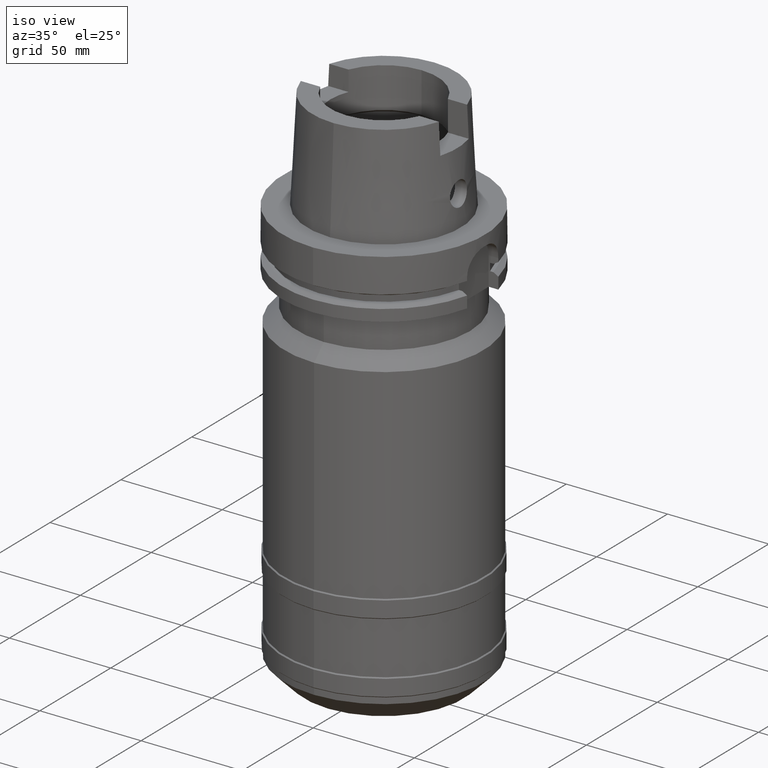
[diagram: clean part render]
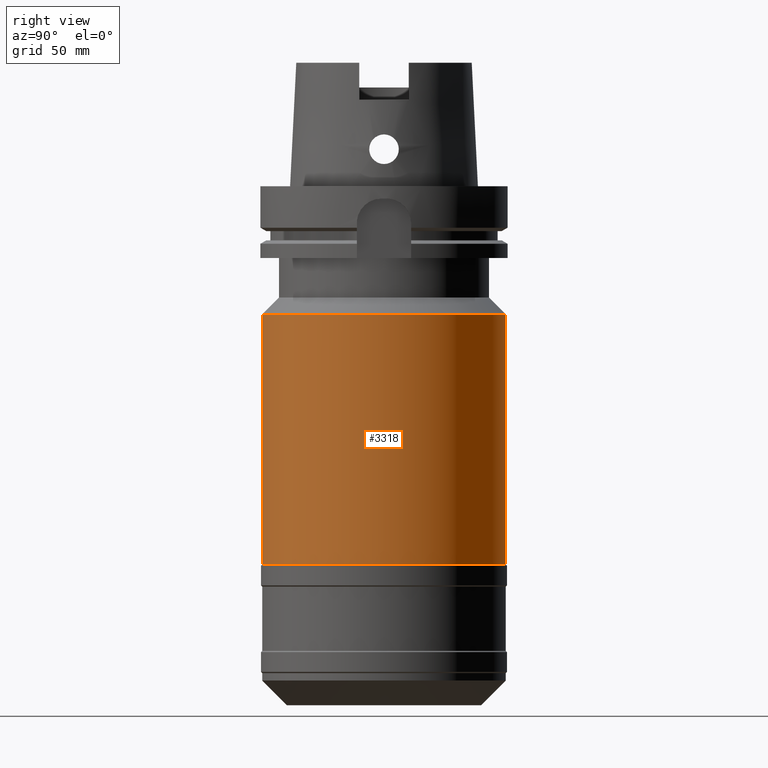
[diagram: tour spotlight — one face highlighted and labeled with its STEP entity id]
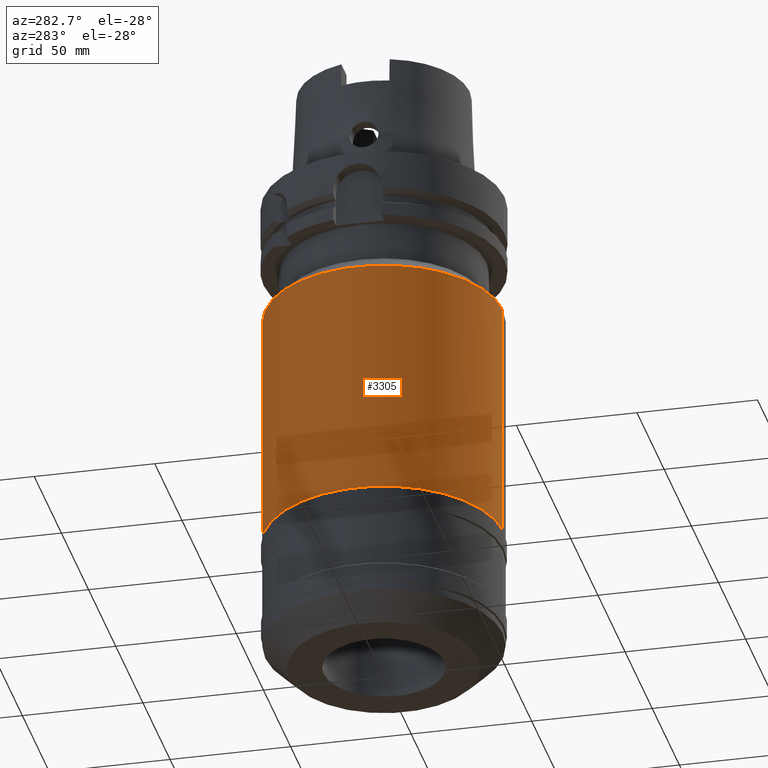
[diagram: tour spotlight — one face highlighted and labeled with its STEP entity id]
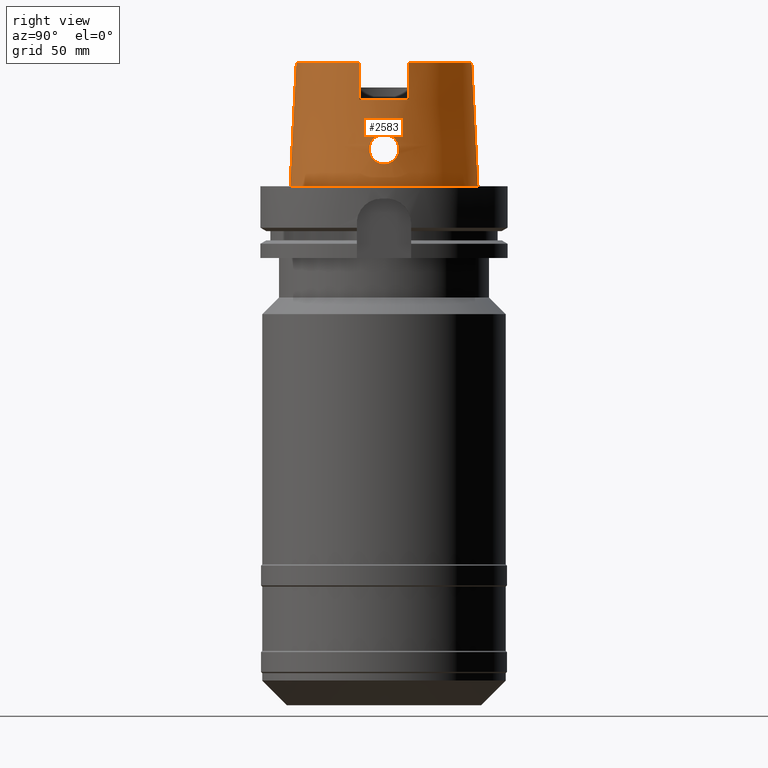
[diagram: tour spotlight — one face highlighted and labeled with its STEP entity id]
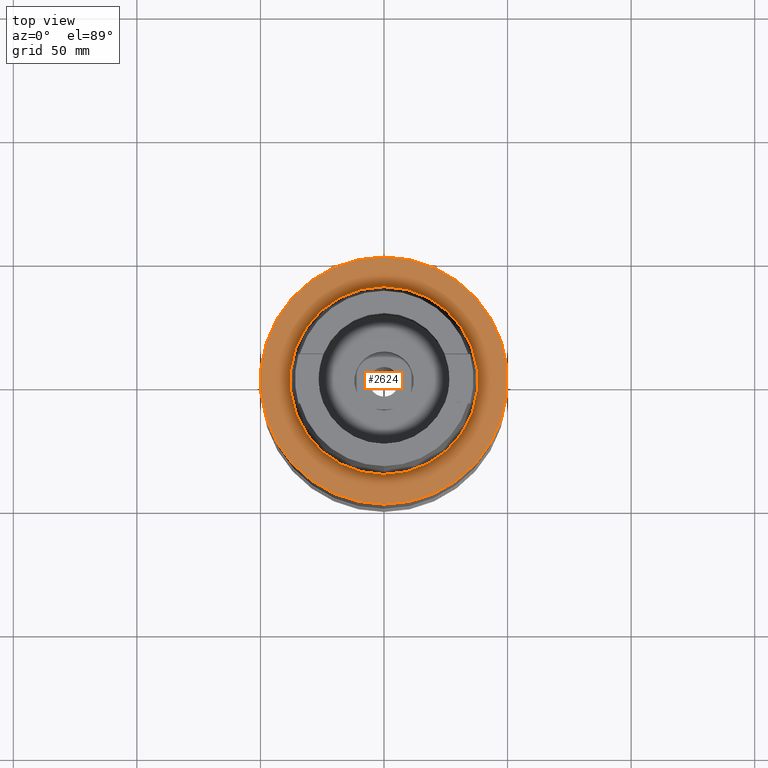
[diagram: tour spotlight — one face highlighted and labeled with its STEP entity id]
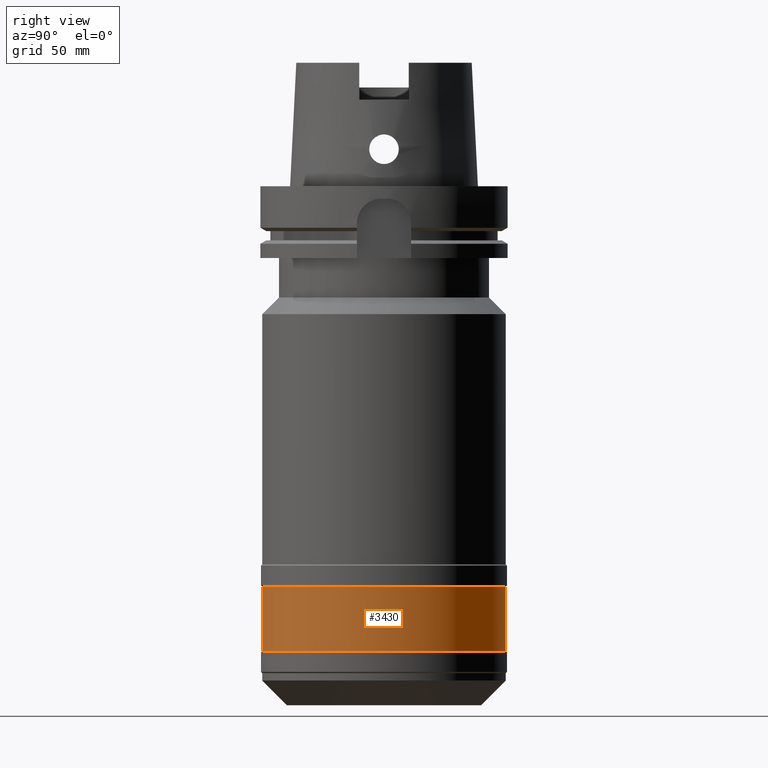
[diagram: tour spotlight — one face highlighted and labeled with its STEP entity id]
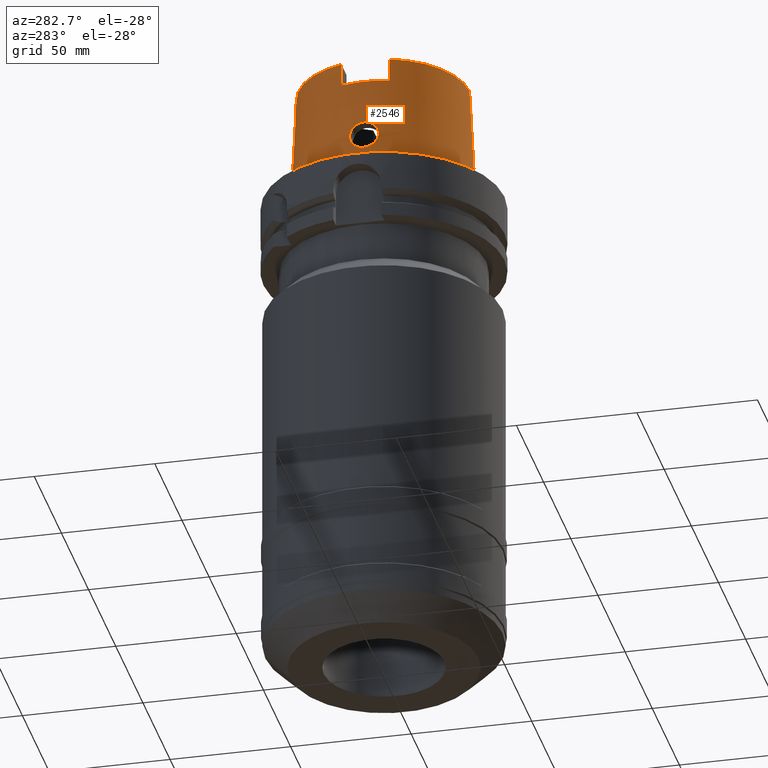
[diagram: tour spotlight — one face highlighted and labeled with its STEP entity id]
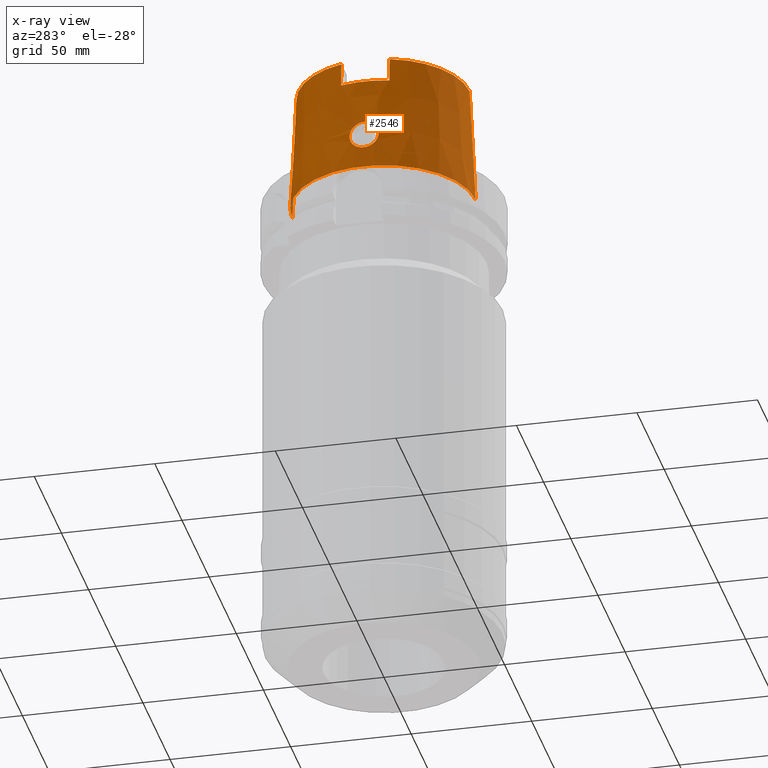
[diagram: x-ray of the same camera — body ghosted, this tour face saturated]
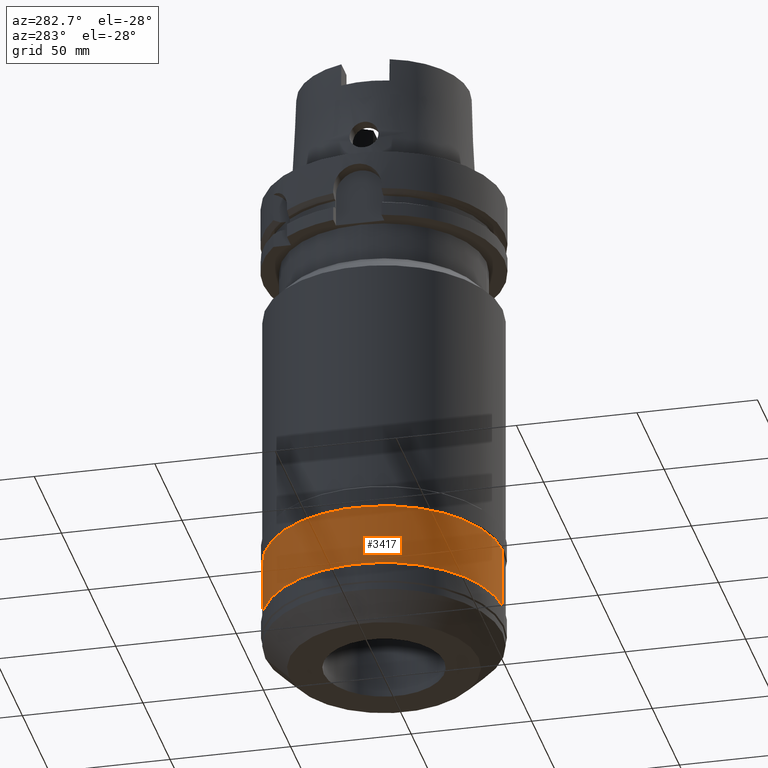
[diagram: tour spotlight — one face highlighted and labeled with its STEP entity id]
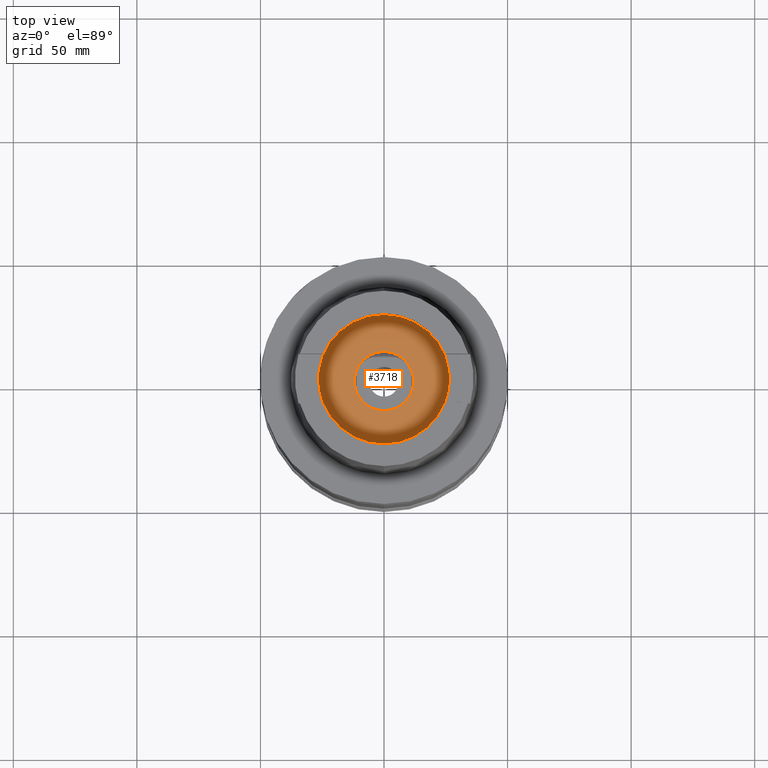
[diagram: tour spotlight — one face highlighted and labeled with its STEP entity id]
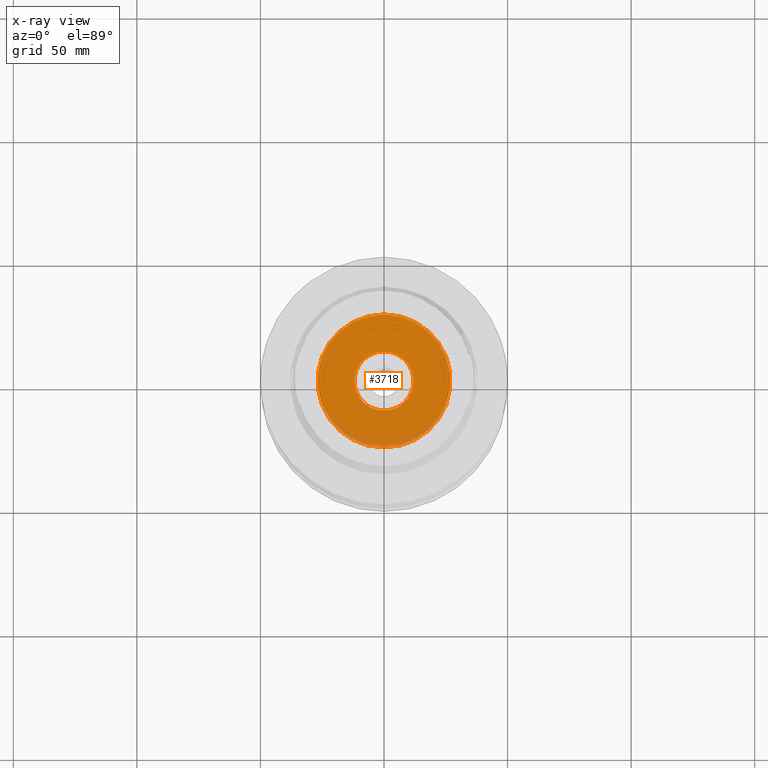
[diagram: x-ray of the same camera — body ghosted, this tour face saturated]
A machine part: a face-by-face anatomy tour. The part has 95 B-rep faces; the first image is the clean iso view, then the 8 largest visible faces are spotlighted one at a time (largest first), each with its STEP entity span.

Face 1 — right view, entity #3318. In plain terms, the highlighted cylindrical surface (partial cylindrical patch) has radius 49.25 mm, axis along (0, 0, 1).
Definition (entity closure, byte-faithful):
#1297=CARTESIAN_POINT('',(0.E0,0.E0,-5.175E1));
#1298=DIRECTION('',(0.E0,0.E0,-1.E0));
#1299=DIRECTION('',(0.E0,1.E0,0.E0));
#1300=AXIS2_PLACEMENT_3D('',#1297,#1298,#1299);
#1336=DIRECTION('',(0.E0,0.E0,-1.E0));
#1337=VECTOR('',#1336,1.0125E2);
#1338=CARTESIAN_POINT('',(0.E0,-4.925E1,-5.175E1));
#1339=LINE('',#1338,#1337);
#1343=DIRECTION('',(0.E0,0.E0,-1.E0));
#1344=VECTOR('',#1343,1.0125E2);
#1345=CARTESIAN_POINT('',(0.E0,4.925E1,-5.175E1));
#1346=LINE('',#1345,#1344);
#1365=CARTESIAN_POINT('',(0.E0,0.E0,-1.53E2));
#1366=DIRECTION('',(0.E0,0.E0,1.E0));
#1367=DIRECTION('',(0.E0,-1.E0,0.E0));
#1368=AXIS2_PLACEMENT_3D('',#1365,#1366,#1367);
#2214=CARTESIAN_POINT('',(0.E0,4.925E1,-5.175E1));
#2215=VERTEX_POINT('',#2214);
#2216=CARTESIAN_POINT('',(0.E0,-4.925E1,-5.175E1));
#2217=VERTEX_POINT('',#2216);
#2218=CARTESIAN_POINT('',(0.E0,4.925E1,-1.53E2));
#2219=VERTEX_POINT('',#2218);
#2220=CARTESIAN_POINT('',(0.E0,-4.925E1,-1.53E2));
#2221=VERTEX_POINT('',#2220);
#3306=CARTESIAN_POINT('',(0.E0,0.E0,-2.23E2));
#3307=DIRECTION('',(0.E0,0.E0,1.E0));
#3308=DIRECTION('',(0.E0,1.E0,0.E0));
#3309=AXIS2_PLACEMENT_3D('',#3306,#3307,#3308);
#3310=CYLINDRICAL_SURFACE('',#3309,4.925E1);
#3311=ORIENTED_EDGE('',*,*,#3296,.T.);
#3313=ORIENTED_EDGE('',*,*,#3312,.F.);
#3314=ORIENTED_EDGE('',*,*,#3299,.F.);
#3315=ORIENTED_EDGE('',*,*,#3270,.F.);
#3316=EDGE_LOOP('',(#3311,#3313,#3314,#3315));
#3317=FACE_OUTER_BOUND('',#3316,.F.);
#1301=CIRCLE('',#1300,4.925E1);
#1369=CIRCLE('',#1368,4.925E1);
#3270=EDGE_CURVE('',#2215,#2217,#1301,.T.);
#3296=EDGE_CURVE('',#2215,#2219,#1346,.T.);
#3299=EDGE_CURVE('',#2217,#2221,#1339,.T.);
#3312=EDGE_CURVE('',#2221,#2219,#1369,.T.);
#3318=ADVANCED_FACE('',(#3317),#3310,.T.);

Face 2 — auxiliary view, entity #3305. In plain terms, the highlighted cylindrical surface (partial cylindrical patch) has radius 49.25 mm, axis along (0, 0, 1).
Definition (entity closure, byte-faithful):
#1328=CARTESIAN_POINT('',(0.E0,0.E0,-5.175E1));
#1329=DIRECTION('',(0.E0,0.E0,-1.E0));
#1330=DIRECTION('',(0.E0,-1.E0,0.E0));
#1331=AXIS2_PLACEMENT_3D('',#1328,#1329,#1330);
#1336=DIRECTION('',(0.E0,0.E0,-1.E0));
#1337=VECTOR('',#1336,1.0125E2);
#1338=CARTESIAN_POINT('',(0.E0,-4.925E1,-5.175E1));
#1339=LINE('',#1338,#1337);
#1343=DIRECTION('',(0.E0,0.E0,-1.E0));
#1344=VECTOR('',#1343,1.0125E2);
#1345=CARTESIAN_POINT('',(0.E0,4.925E1,-5.175E1));
#1346=LINE('',#1345,#1344);
#1373=CARTESIAN_POINT('',(0.E0,0.E0,-1.53E2));
#1374=DIRECTION('',(0.E0,0.E0,1.E0));
#1375=DIRECTION('',(0.E0,1.E0,0.E0));
#1376=AXIS2_PLACEMENT_3D('',#1373,#1374,#1375);
#2214=CARTESIAN_POINT('',(0.E0,4.925E1,-5.175E1));
#2215=VERTEX_POINT('',#2214);
#2216=CARTESIAN_POINT('',(0.E0,-4.925E1,-5.175E1));
#2217=VERTEX_POINT('',#2216);
#2218=CARTESIAN_POINT('',(0.E0,4.925E1,-1.53E2));
#2219=VERTEX_POINT('',#2218);
#2220=CARTESIAN_POINT('',(0.E0,-4.925E1,-1.53E2));
#2221=VERTEX_POINT('',#2220);
#3291=CARTESIAN_POINT('',(0.E0,0.E0,-2.23E2));
#3292=DIRECTION('',(0.E0,0.E0,1.E0));
#3293=DIRECTION('',(0.E0,1.E0,0.E0));
#3294=AXIS2_PLACEMENT_3D('',#3291,#3292,#3293);
#3295=CYLINDRICAL_SURFACE('',#3294,4.925E1);
#3297=ORIENTED_EDGE('',*,*,#3296,.F.);
#3298=ORIENTED_EDGE('',*,*,#3286,.F.);
#3300=ORIENTED_EDGE('',*,*,#3299,.T.);
#3302=ORIENTED_EDGE('',*,*,#3301,.F.);
#3303=EDGE_LOOP('',(#3297,#3298,#3300,#3302));
#3304=FACE_OUTER_BOUND('',#3303,.F.);
#1332=CIRCLE('',#1331,4.925E1);
#1377=CIRCLE('',#1376,4.925E1);
#3286=EDGE_CURVE('',#2217,#2215,#1332,.T.);
#3296=EDGE_CURVE('',#2215,#2219,#1346,.T.);
#3299=EDGE_CURVE('',#2217,#2221,#1339,.T.);
#3301=EDGE_CURVE('',#2219,#2221,#1377,.T.);
#3305=ADVANCED_FACE('',(#3304),#3295,.T.);

Face 3 — right view, entity #2583. In plain terms, the highlighted conical surface has half-angle 2.862 deg.
Definition (entity closure, byte-faithful):
#33=CARTESIAN_POINT('',(0.E0,0.E0,5.E1));
#34=DIRECTION('',(0.E0,0.E0,-1.E0));
#35=DIRECTION('',(0.E0,1.E0,0.E0));
#36=AXIS2_PLACEMENT_3D('',#33,#34,#35);
#136=CARTESIAN_POINT('',(0.E0,0.E0,5.E1));
#137=DIRECTION('',(0.E0,0.E0,-1.E0));
#138=DIRECTION('',(9.594225291368E-1,-2.819723578379E-1,0.E0));
#139=AXIS2_PLACEMENT_3D('',#136,#137,#138);
#179=DIRECTION('',(0.E0,-4.993926899643E-2,-9.987522562738E-1));
#180=VECTOR('',#179,5.006246512678E1);
#181=CARTESIAN_POINT('',(0.E0,-3.549993366993E1,5.E1));
#182=LINE('',#181,#180);
#247=CARTESIAN_POINT('',(3.405943614579E1,-1.001E1,5.E1));
#248=CARTESIAN_POINT('',(3.414630939533E1,-1.001E1,4.833309222734E1));
#249=CARTESIAN_POINT('',(3.431997854160E1,-1.001E1,4.499943651641E1));
#250=CARTESIAN_POINT('',(3.458032701805E1,-1.001E1,3.999943644923E1));
#251=CARTESIAN_POINT('',(3.475379007651E1,-1.001E1,3.666642546522E1));
#252=CARTESIAN_POINT('',(3.484048499117E1,-1.001E1,3.5E1));
#257=CARTESIAN_POINT('',(3.484048499117E1,1.001E1,3.5E1));
#258=CARTESIAN_POINT('',(3.475379007651E1,1.001E1,3.666642546522E1));
#259=CARTESIAN_POINT('',(3.458032701805E1,1.001E1,3.999943644923E1));
#260=CARTESIAN_POINT('',(3.431997854160E1,1.001E1,4.499943651641E1));
#261=CARTESIAN_POINT('',(3.414630939533E1,1.001E1,4.833309222734E1));
#262=CARTESIAN_POINT('',(3.405943614579E1,1.001E1,5.E1));
#267=DIRECTION('',(0.E0,4.993926899643E-2,-9.987522562738E-1));
#268=VECTOR('',#267,5.006246512678E1);
#269=CARTESIAN_POINT('',(0.E0,3.549993366993E1,5.E1));
#270=LINE('',#269,#268);
#274=CARTESIAN_POINT('',(3.694998175923E1,-1.394597051989E-13,2.1E1));
#275=CARTESIAN_POINT('',(3.694998175923E1,-5.230126004361E-1,2.1E1));
#276=CARTESIAN_POINT('',(3.693413998904E1,-1.570201911805E0,2.086238810154E1));
#277=CARTESIAN_POINT('',(3.687094047379E1,-3.037110792427E0,2.025501137923E1));
#278=CARTESIAN_POINT('',(3.679109130844E1,-4.299142818811E0,1.928420430060E1));
#279=CARTESIAN_POINT('',(3.672645747045E1,-5.261736304353E0,1.802437967284E1));
#280=CARTESIAN_POINT('',(3.670710366248E1,-5.864133351276E0,1.656046419197E1));
#281=CARTESIAN_POINT('',(3.675214570651E1,-6.067589951777E0,1.500436049954E1));
#282=CARTESIAN_POINT('',(3.686482139944E1,-5.865500760321E0,1.344301875019E1));
#283=CARTESIAN_POINT('',(3.703191350849E1,-5.262600870461E0,1.197676796452E1));
#284=CARTESIAN_POINT('',(3.722288329311E1,-4.297377496872E0,1.071304670396E1));
#285=CARTESIAN_POINT('',(3.739934591497E1,-3.027363828694E0,9.738853617410E0));
#286=CARTESIAN_POINT('',(3.752127463478E1,-1.559611364021E0,9.135274888512E0));
#287=CARTESIAN_POINT('',(3.755000165825E1,-5.184961183237E-1,9.E0));
#288=CARTESIAN_POINT('',(3.755000165825E1,0.E0,9.E0));
#293=CARTESIAN_POINT('',(3.755000165825E1,0.E0,9.E0));
#294=CARTESIAN_POINT('',(3.755000165825E1,5.180755808704E-1,9.E0));
#295=CARTESIAN_POINT('',(3.752123976991E1,1.555457138629E0,9.135504589557E0));
#296=CARTESIAN_POINT('',(3.740151953141E1,3.004805221264E0,9.728024511899E0));
#297=CARTESIAN_POINT('',(3.722750411562E1,4.269442508443E0,1.068600386384E1));
#298=CARTESIAN_POINT('',(3.703612455343E1,5.245140589349E0,1.194462932491E1));
#299=CARTESIAN_POINT('',(3.686635136495E1,5.862211683343E0,1.342388085629E1));
#300=CARTESIAN_POINT('',(3.675195938897E1,6.068924227686E0,1.500356697737E1));
#301=CARTESIAN_POINT('',(3.670699644778E1,5.862090617243E0,1.656938676171E1));
#302=CARTESIAN_POINT('',(3.672673353473E1,5.257850400820E0,1.802962385481E1));
#303=CARTESIAN_POINT('',(3.679090914946E1,4.301585837748E0,1.928062095478E1));
#304=CARTESIAN_POINT('',(3.687053943676E1,3.044356714936E0,2.025092074959E1));
#305=CARTESIAN_POINT('',(3.693405051753E1,1.574510382309E0,2.086164770044E1));
#306=CARTESIAN_POINT('',(3.694998175923E1,5.247305156505E-1,2.1E1));
#307=CARTESIAN_POINT('',(3.694998175923E1,-1.394597051989E-13,2.1E1));
#327=CARTESIAN_POINT('',(0.E0,0.E0,3.5E1));
#328=DIRECTION('',(0.E0,0.E0,-1.E0));
#329=DIRECTION('',(9.611179264983E-1,2.761382468323E-1,0.E0));
#330=AXIS2_PLACEMENT_3D('',#327,#328,#329);
#358=CARTESIAN_POINT('',(0.E0,0.E0,-1.136868377216E-13));
#359=DIRECTION('',(0.E0,0.E0,1.E0));
#360=DIRECTION('',(0.E0,-1.E0,0.E0));
#361=AXIS2_PLACEMENT_3D('',#358,#359,#360);
#2098=CARTESIAN_POINT('',(0.E0,3.549993366992E1,5.E1));
#2099=VERTEX_POINT('',#2098);
#2100=CARTESIAN_POINT('',(3.405943614579E1,1.001E1,5.E1));
#2101=VERTEX_POINT('',#2100);
#2114=CARTESIAN_POINT('',(3.405943614579E1,-1.001E1,5.E1));
#2115=VERTEX_POINT('',#2114);
#2116=CARTESIAN_POINT('',(0.E0,-3.549993366992E1,5.E1));
#2117=VERTEX_POINT('',#2116);
#2132=CARTESIAN_POINT('',(3.484048499117E1,-1.001E1,3.5E1));
#2133=VERTEX_POINT('',#2132);
#2134=CARTESIAN_POINT('',(3.484048499117E1,1.001E1,3.5E1));
#2135=VERTEX_POINT('',#2134);
#2136=CARTESIAN_POINT('',(0.E0,3.800001658252E1,-2.273736754432E-13));
#2137=VERTEX_POINT('',#2136);
#2138=CARTESIAN_POINT('',(0.E0,-3.800001658252E1,-1.136868377216E-13));
#2139=VERTEX_POINT('',#2138);
#2140=VERTEX_POINT('',#274);
#2141=VERTEX_POINT('',#288);
#2559=CARTESIAN_POINT('',(0.E0,0.E0,2.5E1));
#2560=DIRECTION('',(0.E0,0.E0,-1.E0));
#2561=DIRECTION('',(0.E0,-1.E0,0.E0));
#2562=AXIS2_PLACEMENT_3D('',#2559,#2560,#2561);
#2563=CONICAL_SURFACE('',#2562,3.674997512622E1,2.8625E0);
#2564=ORIENTED_EDGE('',*,*,#2485,.T.);
#2566=ORIENTED_EDGE('',*,*,#2565,.F.);
#2568=ORIENTED_EDGE('',*,*,#2567,.T.);
#2569=ORIENTED_EDGE('',*,*,#2406,.F.);
#2570=ORIENTED_EDGE('',*,*,#2535,.T.);
#2572=ORIENTED_EDGE('',*,*,#2571,.F.);
#2573=ORIENTED_EDGE('',*,*,#2531,.F.);
#2574=ORIENTED_EDGE('',*,*,#2500,.F.);
#2575=EDGE_LOOP('',(#2564,#2566,#2568,#2569,#2570,#2572,#2573,#2574));
#2576=FACE_OUTER_BOUND('',#2575,.F.);
#2578=ORIENTED_EDGE('',*,*,#2577,.T.);
#2580=ORIENTED_EDGE('',*,*,#2579,.T.);
#2581=EDGE_LOOP('',(#2578,#2580));
#2582=FACE_BOUND('',#2581,.F.);
#37=CIRCLE('',#36,3.549993366992E1);
#140=CIRCLE('',#139,3.549993366992E1);
#253=B_SPLINE_CURVE_WITH_KNOTS('',3,(#247,#248,#249,#250,#251,#252),
.UNSPECIFIED.,.F.,.F.,(4,1,1,4),(0.E0,3.333333333333E-1,6.666666666667E-1,1.E0),
.UNSPECIFIED.);
#263=B_SPLINE_CURVE_WITH_KNOTS('',3,(#257,#258,#259,#260,#261,#262),
.UNSPECIFIED.,.F.,.F.,(4,1,1,4),(0.E0,3.333333333333E-1,6.666666666667E-1,1.E0),
.UNSPECIFIED.);
#289=B_SPLINE_CURVE_WITH_KNOTS('',3,(#274,#275,#276,#277,#278,#279,#280,#281,
#282,#283,#284,#285,#286,#287,#288),.UNSPECIFIED.,.F.,.F.,(4,1,1,1,1,1,1,1,1,1,
1,1,4),(0.E0,8.333333333333E-2,1.666666666667E-1,2.5E-1,3.333333333333E-1,
4.166666666667E-1,5.E-1,5.833333333333E-1,6.666666666667E-1,7.5E-1,
8.333333333333E-1,9.166666666667E-1,1.E0),.UNSPECIFIED.);
#308=B_SPLINE_CURVE_WITH_KNOTS('',3,(#293,#294,#295,#296,#297,#298,#299,#300,
#301,#302,#303,#304,#305,#306,#307),.UNSPECIFIED.,.F.,.F.,(4,1,1,1,1,1,1,1,1,1,
1,1,4),(0.E0,8.333333333333E-2,1.666666666667E-1,2.5E-1,3.333333333333E-1,
4.166666666667E-1,5.E-1,5.833333333333E-1,6.666666666667E-1,7.5E-1,
8.333333333333E-1,9.166666666667E-1,1.E0),.UNSPECIFIED.);
#331=CIRCLE('',#330,3.624995854370E1);
#362=CIRCLE('',#361,3.800001658252E1);
#2406=EDGE_CURVE('',#2099,#2101,#37,.T.);
#2485=EDGE_CURVE('',#2115,#2133,#253,.T.);
#2500=EDGE_CURVE('',#2115,#2117,#140,.T.);
#2531=EDGE_CURVE('',#2117,#2139,#182,.T.);
#2535=EDGE_CURVE('',#2099,#2137,#270,.T.);
#2565=EDGE_CURVE('',#2135,#2133,#331,.T.);
#2567=EDGE_CURVE('',#2135,#2101,#263,.T.);
#2571=EDGE_CURVE('',#2139,#2137,#362,.T.);
#2577=EDGE_CURVE('',#2140,#2141,#289,.T.);
#2579=EDGE_CURVE('',#2141,#2140,#308,.T.);
#2583=ADVANCED_FACE('',(#2576,#2582),#2563,.T.);

Face 4 — top view, entity #2624. In plain terms, the highlighted planar face has unit normal (0, 0, 1).
Definition (entity closure, byte-faithful):
#342=CARTESIAN_POINT('',(0.E0,0.E0,0.E0));
#343=DIRECTION('',(0.E0,0.E0,-1.E0));
#344=DIRECTION('',(0.E0,-1.E0,0.E0));
#345=AXIS2_PLACEMENT_3D('',#342,#343,#344);
#350=CARTESIAN_POINT('',(0.E0,0.E0,0.E0));
#351=DIRECTION('',(0.E0,0.E0,-1.E0));
#352=DIRECTION('',(0.E0,1.E0,0.E0));
#353=AXIS2_PLACEMENT_3D('',#350,#351,#352);
#358=CARTESIAN_POINT('',(0.E0,0.E0,-1.136868377216E-13));
#359=DIRECTION('',(0.E0,0.E0,1.E0));
#360=DIRECTION('',(0.E0,-1.E0,0.E0));
#361=AXIS2_PLACEMENT_3D('',#358,#359,#360);
#366=CARTESIAN_POINT('',(0.E0,0.E0,-1.136868377216E-13));
#367=DIRECTION('',(0.E0,0.E0,1.E0));
#368=DIRECTION('',(0.E0,1.E0,0.E0));
#369=AXIS2_PLACEMENT_3D('',#366,#367,#368);
#2136=CARTESIAN_POINT('',(0.E0,3.800001658252E1,-2.273736754432E-13));
#2137=VERTEX_POINT('',#2136);
#2138=CARTESIAN_POINT('',(0.E0,-3.800001658252E1,-1.136868377216E-13));
#2139=VERTEX_POINT('',#2138);
#2146=CARTESIAN_POINT('',(0.E0,-5.E1,0.E0));
#2147=CARTESIAN_POINT('',(0.E0,5.E1,0.E0));
#2148=VERTEX_POINT('',#2146);
#2149=VERTEX_POINT('',#2147);
#2609=CARTESIAN_POINT('',(0.E0,0.E0,0.E0));
#2610=DIRECTION('',(0.E0,0.E0,1.E0));
#2611=DIRECTION('',(0.E0,1.E0,0.E0));
#2612=AXIS2_PLACEMENT_3D('',#2609,#2610,#2611);
#2613=PLANE('',#2612);
#2615=ORIENTED_EDGE('',*,*,#2614,.T.);
#2617=ORIENTED_EDGE('',*,*,#2616,.T.);
#2618=EDGE_LOOP('',(#2615,#2617));
#2619=FACE_OUTER_BOUND('',#2618,.F.);
#2620=ORIENTED_EDGE('',*,*,#2571,.T.);
#2621=ORIENTED_EDGE('',*,*,#2533,.T.);
#2622=EDGE_LOOP('',(#2620,#2621));
#2623=FACE_BOUND('',#2622,.F.);
#346=CIRCLE('',#345,5.E1);
#354=CIRCLE('',#353,5.E1);
#362=CIRCLE('',#361,3.800001658252E1);
#370=CIRCLE('',#369,3.800001658252E1);
#2533=EDGE_CURVE('',#2137,#2139,#370,.T.);
#2571=EDGE_CURVE('',#2139,#2137,#362,.T.);
#2614=EDGE_CURVE('',#2148,#2149,#346,.T.);
#2616=EDGE_CURVE('',#2149,#2148,#354,.T.);
#2624=ADVANCED_FACE('',(#2619,#2623),#2613,.T.);

Face 5 — right view, entity #3430. In plain terms, the highlighted cylindrical surface (partial cylindrical patch) has radius 49.25 mm, axis along (0, 0, 1).
Definition (entity closure, byte-faithful):
#1417=CARTESIAN_POINT('',(0.E0,0.E0,-1.62E2));
#1418=DIRECTION('',(0.E0,0.E0,-1.E0));
#1419=DIRECTION('',(0.E0,1.E0,0.E0));
#1420=AXIS2_PLACEMENT_3D('',#1417,#1418,#1419);
#1456=DIRECTION('',(0.E0,0.E0,-1.E0));
#1457=VECTOR('',#1456,2.6E1);
#1458=CARTESIAN_POINT('',(0.E0,-4.925E1,-1.62E2));
#1459=LINE('',#1458,#1457);
#1463=DIRECTION('',(0.E0,0.E0,-1.E0));
#1464=VECTOR('',#1463,2.6E1);
#1465=CARTESIAN_POINT('',(0.E0,4.925E1,-1.62E2));
#1466=LINE('',#1465,#1464);
#1485=CARTESIAN_POINT('',(0.E0,0.E0,-1.88E2));
#1486=DIRECTION('',(0.E0,0.E0,1.E0));
#1487=DIRECTION('',(0.E0,-1.E0,0.E0));
#1488=AXIS2_PLACEMENT_3D('',#1485,#1486,#1487);
#2230=CARTESIAN_POINT('',(0.E0,4.925E1,-1.62E2));
#2231=VERTEX_POINT('',#2230);
#2232=CARTESIAN_POINT('',(0.E0,-4.925E1,-1.62E2));
#2233=VERTEX_POINT('',#2232);
#2234=CARTESIAN_POINT('',(0.E0,4.925E1,-1.88E2));
#2235=VERTEX_POINT('',#2234);
#2236=CARTESIAN_POINT('',(0.E0,-4.925E1,-1.88E2));
#2237=VERTEX_POINT('',#2236);
#3418=CARTESIAN_POINT('',(0.E0,0.E0,-2.23E2));
#3419=DIRECTION('',(0.E0,0.E0,1.E0));
#3420=DIRECTION('',(0.E0,1.E0,0.E0));
#3421=AXIS2_PLACEMENT_3D('',#3418,#3419,#3420);
#3422=CYLINDRICAL_SURFACE('',#3421,4.925E1);
#3423=ORIENTED_EDGE('',*,*,#3408,.T.);
#3425=ORIENTED_EDGE('',*,*,#3424,.F.);
#3426=ORIENTED_EDGE('',*,*,#3411,.F.);
#3427=ORIENTED_EDGE('',*,*,#3382,.F.);
#3428=EDGE_LOOP('',(#3423,#3425,#3426,#3427));
#3429=FACE_OUTER_BOUND('',#3428,.F.);
#1421=CIRCLE('',#1420,4.925E1);
#1489=CIRCLE('',#1488,4.925E1);
#3382=EDGE_CURVE('',#2231,#2233,#1421,.T.);
#3408=EDGE_CURVE('',#2231,#2235,#1466,.T.);
#3411=EDGE_CURVE('',#2233,#2237,#1459,.T.);
#3424=EDGE_CURVE('',#2237,#2235,#1489,.T.);
#3430=ADVANCED_FACE('',(#3429),#3422,.T.);

Face 6 — auxiliary view, entity #2546. An x-ray twin of the same camera follows (body ghosted, this face saturated) — the face is partly hidden behind the body. In plain terms, the highlighted conical surface has half-angle 2.862 deg.
Definition (entity closure, byte-faithful):
#25=CARTESIAN_POINT('',(0.E0,0.E0,5.E1));
#26=DIRECTION('',(0.E0,0.E0,-1.E0));
#27=DIRECTION('',(-9.594225291368E-1,2.819723578379E-1,0.E0));
#28=AXIS2_PLACEMENT_3D('',#25,#26,#27);
#144=CARTESIAN_POINT('',(0.E0,0.E0,5.E1));
#145=DIRECTION('',(0.E0,0.E0,-1.E0));
#146=DIRECTION('',(0.E0,-1.E0,0.E0));
#147=AXIS2_PLACEMENT_3D('',#144,#145,#146);
#159=CARTESIAN_POINT('',(-3.405943614579E1,1.001E1,5.E1));
#160=CARTESIAN_POINT('',(-3.411734891553E1,1.001E1,4.888878053341E1));
#161=CARTESIAN_POINT('',(-3.423313994952E1,1.001E1,4.666641344050E1));
#162=CARTESIAN_POINT('',(-3.440675689289E1,1.001E1,4.333308008699E1));
#163=CARTESIAN_POINT('',(-3.452245538564E1,1.001E1,4.111100272689E1));
#164=CARTESIAN_POINT('',(-3.458028800023E1,1.001E1,4.E1));
#169=CARTESIAN_POINT('',(-3.458028800023E1,-1.001E1,4.E1));
#170=CARTESIAN_POINT('',(-3.452245538564E1,-1.001E1,4.111100272688E1));
#171=CARTESIAN_POINT('',(-3.440675689289E1,-1.001E1,4.333308008698E1));
#172=CARTESIAN_POINT('',(-3.423313994952E1,-1.001E1,4.666641344049E1));
#173=CARTESIAN_POINT('',(-3.411734891553E1,-1.001E1,4.888878053340E1));
#174=CARTESIAN_POINT('',(-3.405943614579E1,-1.001E1,5.E1));
#179=DIRECTION('',(0.E0,-4.993926899643E-2,-9.987522562738E-1));
#180=VECTOR('',#179,5.006246512678E1);
#181=CARTESIAN_POINT('',(0.E0,-3.549993366993E1,5.E1));
#182=LINE('',#181,#180);
#186=CARTESIAN_POINT('',(-3.755000165825E1,1.432651546991E-13,9.E0));
#187=CARTESIAN_POINT('',(-3.755000165825E1,-5.180820580257E-1,9.E0));
#188=CARTESIAN_POINT('',(-3.752123900372E1,-1.555471630263E0,9.135508208904E0));
#189=CARTESIAN_POINT('',(-3.740151852966E1,-3.004812628725E0,9.728029831910E0));
#190=CARTESIAN_POINT('',(-3.722750441794E1,-4.269439729627E0,1.068600255926E1));
#191=CARTESIAN_POINT('',(-3.703612608896E1,-5.245133597047E0,1.194461863005E1));
#192=CARTESIAN_POINT('',(-3.686635251457E1,-5.862208889609E0,1.342386732222E1));
#193=CARTESIAN_POINT('',(-3.675195940150E1,-6.068924555309E0,1.500356552634E1));
#194=CARTESIAN_POINT('',(-3.670699645884E1,-5.862092105491E0,1.656938215048E1));
#195=CARTESIAN_POINT('',(-3.672673361109E1,-5.257848040084E0,1.802962911021E1));
#196=CARTESIAN_POINT('',(-3.679090955253E1,-4.301580727658E0,1.928062722612E1));
#197=CARTESIAN_POINT('',(-3.687054035588E1,-3.044339581713E0,2.025093050896E1));
#198=CARTESIAN_POINT('',(-3.693405053436E1,-1.574506161780E0,2.086164752451E1));
#199=CARTESIAN_POINT('',(-3.694998175923E1,-5.247291006619E-1,2.1E1));
#200=CARTESIAN_POINT('',(-3.694998175923E1,0.E0,2.1E1));
#205=CARTESIAN_POINT('',(-3.694998175923E1,0.E0,2.1E1));
#206=CARTESIAN_POINT('',(-3.694998175923E1,5.230136541555E-1,2.1E1));
#207=CARTESIAN_POINT('',(-3.693414000239E1,1.570205301537E0,2.086238855478E1));
#208=CARTESIAN_POINT('',(-3.687093953902E1,3.037128326245E0,2.025500149235E1));
#209=CARTESIAN_POINT('',(-3.679109092586E1,4.299147512916E0,1.928419817540E1));
#210=CARTESIAN_POINT('',(-3.672645757469E1,5.261736133529E0,1.802437780842E1));
#211=CARTESIAN_POINT('',(-3.670710362419E1,5.864129128688E0,1.656047814322E1));
#212=CARTESIAN_POINT('',(-3.675214520376E1,6.067590095839E0,1.500437003646E1));
#213=CARTESIAN_POINT('',(-3.686482010446E1,5.865504368148E0,1.344303280869E1));
#214=CARTESIAN_POINT('',(-3.703191240545E1,5.262605835724E0,1.197677571791E1));
#215=CARTESIAN_POINT('',(-3.722288247233E1,4.297382655579E0,1.071305144901E1));
#216=CARTESIAN_POINT('',(-3.739934614425E1,3.027363516882E0,9.738852219131E0));
#217=CARTESIAN_POINT('',(-3.752127526940E1,1.559600738023E0,9.135271869562E0));
#218=CARTESIAN_POINT('',(-3.755000165825E1,5.184911667316E-1,9.E0));
#219=CARTESIAN_POINT('',(-3.755000165825E1,1.432651546991E-13,9.E0));
#239=CARTESIAN_POINT('',(0.E0,0.E0,4.E1));
#240=DIRECTION('',(0.E0,0.E0,-1.E0));
#241=DIRECTION('',(-9.605648829439E-1,-2.780559397945E-1,0.E0));
#242=AXIS2_PLACEMENT_3D('',#239,#240,#241);
#267=DIRECTION('',(0.E0,4.993926899643E-2,-9.987522562738E-1));
#268=VECTOR('',#267,5.006246512678E1);
#269=CARTESIAN_POINT('',(0.E0,3.549993366993E1,5.E1));
#270=LINE('',#269,#268);
#366=CARTESIAN_POINT('',(0.E0,0.E0,-1.136868377216E-13));
#367=DIRECTION('',(0.E0,0.E0,1.E0));
#368=DIRECTION('',(0.E0,1.E0,0.E0));
#369=AXIS2_PLACEMENT_3D('',#366,#367,#368);
#2095=CARTESIAN_POINT('',(-3.405943614579E1,1.001E1,5.E1));
#2097=VERTEX_POINT('',#2095);
#2098=CARTESIAN_POINT('',(0.E0,3.549993366992E1,5.E1));
#2099=VERTEX_POINT('',#2098);
#2107=CARTESIAN_POINT('',(-3.405943614579E1,-1.001E1,5.E1));
#2109=VERTEX_POINT('',#2107);
#2116=CARTESIAN_POINT('',(0.E0,-3.549993366992E1,5.E1));
#2117=VERTEX_POINT('',#2116);
#2120=CARTESIAN_POINT('',(-3.458028800023E1,1.001E1,4.E1));
#2121=VERTEX_POINT('',#2120);
#2136=CARTESIAN_POINT('',(0.E0,3.800001658252E1,-2.273736754432E-13));
#2137=VERTEX_POINT('',#2136);
#2138=CARTESIAN_POINT('',(0.E0,-3.800001658252E1,-1.136868377216E-13));
#2139=VERTEX_POINT('',#2138);
#2142=CARTESIAN_POINT('',(-3.458028800022E1,-1.001E1,4.E1));
#2143=VERTEX_POINT('',#2142);
#2144=VERTEX_POINT('',#186);
#2145=VERTEX_POINT('',#200);
#2521=CARTESIAN_POINT('',(0.E0,0.E0,2.5E1));
#2522=DIRECTION('',(0.E0,0.E0,-1.E0));
#2523=DIRECTION('',(0.E0,-1.E0,0.E0));
#2524=AXIS2_PLACEMENT_3D('',#2521,#2522,#2523);
#2525=CONICAL_SURFACE('',#2524,3.674997512622E1,2.8625E0);
#2526=ORIENTED_EDGE('',*,*,#2427,.T.);
#2528=ORIENTED_EDGE('',*,*,#2527,.F.);
#2529=ORIENTED_EDGE('',*,*,#2513,.T.);
#2530=ORIENTED_EDGE('',*,*,#2502,.F.);
#2532=ORIENTED_EDGE('',*,*,#2531,.T.);
#2534=ORIENTED_EDGE('',*,*,#2533,.F.);
#2536=ORIENTED_EDGE('',*,*,#2535,.F.);
#2537=ORIENTED_EDGE('',*,*,#2404,.F.);
#2538=EDGE_LOOP('',(#2526,#2528,#2529,#2530,#2532,#2534,#2536,#2537));
#2539=FACE_OUTER_BOUND('',#2538,.F.);
#2541=ORIENTED_EDGE('',*,*,#2540,.T.);
#2543=ORIENTED_EDGE('',*,*,#2542,.T.);
#2544=EDGE_LOOP('',(#2541,#2543));
#2545=FACE_BOUND('',#2544,.F.);
#29=CIRCLE('',#28,3.549993366992E1);
#148=CIRCLE('',#147,3.549993366992E1);
#165=B_SPLINE_CURVE_WITH_KNOTS('',3,(#159,#160,#161,#162,#163,#164),
.UNSPECIFIED.,.F.,.F.,(4,1,1,4),(0.E0,3.333333333333E-1,6.666666666667E-1,1.E0),
.UNSPECIFIED.);
#175=B_SPLINE_CURVE_WITH_KNOTS('',3,(#169,#170,#171,#172,#173,#174),
.UNSPECIFIED.,.F.,.F.,(4,1,1,4),(0.E0,3.333333333333E-1,6.666666666667E-1,1.E0),
.UNSPECIFIED.);
#201=B_SPLINE_CURVE_WITH_KNOTS('',3,(#186,#187,#188,#189,#190,#191,#192,#193,
#194,#195,#196,#197,#198,#199,#200),.UNSPECIFIED.,.F.,.F.,(4,1,1,1,1,1,1,1,1,1,
1,1,4),(0.E0,8.333333333333E-2,1.666666666667E-1,2.5E-1,3.333333333333E-1,
4.166666666667E-1,5.E-1,5.833333333333E-1,6.666666666667E-1,7.5E-1,
8.333333333333E-1,9.166666666667E-1,1.E0),.UNSPECIFIED.);
#220=B_SPLINE_CURVE_WITH_KNOTS('',3,(#205,#206,#207,#208,#209,#210,#211,#212,
#213,#214,#215,#216,#217,#218,#219),.UNSPECIFIED.,.F.,.F.,(4,1,1,1,1,1,1,1,1,1,
1,1,4),(0.E0,8.333333333333E-2,1.666666666667E-1,2.5E-1,3.333333333333E-1,
4.166666666667E-1,5.E-1,5.833333333333E-1,6.666666666667E-1,7.5E-1,
8.333333333333E-1,9.166666666667E-1,1.E0),.UNSPECIFIED.);
#243=CIRCLE('',#242,3.599995025244E1);
#370=CIRCLE('',#369,3.800001658252E1);
#2404=EDGE_CURVE('',#2097,#2099,#29,.T.);
#2427=EDGE_CURVE('',#2097,#2121,#165,.T.);
#2502=EDGE_CURVE('',#2117,#2109,#148,.T.);
#2513=EDGE_CURVE('',#2143,#2109,#175,.T.);
#2527=EDGE_CURVE('',#2143,#2121,#243,.T.);
#2531=EDGE_CURVE('',#2117,#2139,#182,.T.);
#2533=EDGE_CURVE('',#2137,#2139,#370,.T.);
#2535=EDGE_CURVE('',#2099,#2137,#270,.T.);
#2540=EDGE_CURVE('',#2144,#2145,#201,.T.);
#2542=EDGE_CURVE('',#2145,#2144,#220,.T.);
#2546=ADVANCED_FACE('',(#2539,#2545),#2525,.T.);

Face 7 — auxiliary view, entity #3417. In plain terms, the highlighted cylindrical surface (partial cylindrical patch) has radius 49.25 mm, axis along (0, 0, 1).
Definition (entity closure, byte-faithful):
#1448=CARTESIAN_POINT('',(0.E0,0.E0,-1.62E2));
#1449=DIRECTION('',(0.E0,0.E0,-1.E0));
#1450=DIRECTION('',(0.E0,-1.E0,0.E0));
#1451=AXIS2_PLACEMENT_3D('',#1448,#1449,#1450);
#1456=DIRECTION('',(0.E0,0.E0,-1.E0));
#1457=VECTOR('',#1456,2.6E1);
#1458=CARTESIAN_POINT('',(0.E0,-4.925E1,-1.62E2));
#1459=LINE('',#1458,#1457);
#1463=DIRECTION('',(0.E0,0.E0,-1.E0));
#1464=VECTOR('',#1463,2.6E1);
#1465=CARTESIAN_POINT('',(0.E0,4.925E1,-1.62E2));
#1466=LINE('',#1465,#1464);
#1493=CARTESIAN_POINT('',(0.E0,0.E0,-1.88E2));
#1494=DIRECTION('',(0.E0,0.E0,1.E0));
#1495=DIRECTION('',(0.E0,1.E0,0.E0));
#1496=AXIS2_PLACEMENT_3D('',#1493,#1494,#1495);
#2230=CARTESIAN_POINT('',(0.E0,4.925E1,-1.62E2));
#2231=VERTEX_POINT('',#2230);
#2232=CARTESIAN_POINT('',(0.E0,-4.925E1,-1.62E2));
#2233=VERTEX_POINT('',#2232);
#2234=CARTESIAN_POINT('',(0.E0,4.925E1,-1.88E2));
#2235=VERTEX_POINT('',#2234);
#2236=CARTESIAN_POINT('',(0.E0,-4.925E1,-1.88E2));
#2237=VERTEX_POINT('',#2236);
#3403=CARTESIAN_POINT('',(0.E0,0.E0,-2.23E2));
#3404=DIRECTION('',(0.E0,0.E0,1.E0));
#3405=DIRECTION('',(0.E0,1.E0,0.E0));
#3406=AXIS2_PLACEMENT_3D('',#3403,#3404,#3405);
#3407=CYLINDRICAL_SURFACE('',#3406,4.925E1);
#3409=ORIENTED_EDGE('',*,*,#3408,.F.);
#3410=ORIENTED_EDGE('',*,*,#3398,.F.);
#3412=ORIENTED_EDGE('',*,*,#3411,.T.);
#3414=ORIENTED_EDGE('',*,*,#3413,.F.);
#3415=EDGE_LOOP('',(#3409,#3410,#3412,#3414));
#3416=FACE_OUTER_BOUND('',#3415,.F.);
#1452=CIRCLE('',#1451,4.925E1);
#1497=CIRCLE('',#1496,4.925E1);
#3398=EDGE_CURVE('',#2233,#2231,#1452,.T.);
#3408=EDGE_CURVE('',#2231,#2235,#1466,.T.);
#3411=EDGE_CURVE('',#2233,#2237,#1459,.T.);
#3413=EDGE_CURVE('',#2235,#2237,#1497,.T.);
#3417=ADVANCED_FACE('',(#3416),#3407,.T.);

Face 8 — top view, entity #3718. An x-ray twin of the same camera follows (body ghosted, this face saturated) — the face is partly hidden behind the body. In plain terms, the highlighted planar face has unit normal (0, 0, 1).
Definition (entity closure, byte-faithful):
#1758=CARTESIAN_POINT('',(0.E0,0.E0,-1.245E1));
#1759=DIRECTION('',(0.E0,0.E0,-1.E0));
#1760=DIRECTION('',(0.E0,-1.E0,0.E0));
#1761=AXIS2_PLACEMENT_3D('',#1758,#1759,#1760);
#1766=CARTESIAN_POINT('',(0.E0,0.E0,-1.245E1));
#1767=DIRECTION('',(0.E0,0.E0,-1.E0));
#1768=DIRECTION('',(0.E0,1.E0,0.E0));
#1769=AXIS2_PLACEMENT_3D('',#1766,#1767,#1768);
#1774=CARTESIAN_POINT('',(0.E0,0.E0,-1.245E1));
#1775=DIRECTION('',(0.E0,0.E0,1.E0));
#1776=DIRECTION('',(0.E0,-1.E0,0.E0));
#1777=AXIS2_PLACEMENT_3D('',#1774,#1775,#1776);
#1782=CARTESIAN_POINT('',(0.E0,0.E0,-1.245E1));
#1783=DIRECTION('',(0.E0,0.E0,1.E0));
#1784=DIRECTION('',(0.E0,1.E0,0.E0));
#1785=AXIS2_PLACEMENT_3D('',#1782,#1783,#1784);
#2278=CARTESIAN_POINT('',(0.E0,1.2E1,-1.245E1));
#2279=VERTEX_POINT('',#2278);
#2280=CARTESIAN_POINT('',(0.E0,-1.2E1,-1.245E1));
#2281=VERTEX_POINT('',#2280);
#2282=CARTESIAN_POINT('',(0.E0,-2.69E1,-1.245E1));
#2283=CARTESIAN_POINT('',(0.E0,2.69E1,-1.245E1));
#2284=VERTEX_POINT('',#2282);
#2285=VERTEX_POINT('',#2283);
#3703=CARTESIAN_POINT('',(0.E0,0.E0,-1.245E1));
#3704=DIRECTION('',(0.E0,0.E0,1.E0));
#3705=DIRECTION('',(0.E0,1.E0,0.E0));
#3706=AXIS2_PLACEMENT_3D('',#3703,#3704,#3705);
#3707=PLANE('',#3706);
#3709=ORIENTED_EDGE('',*,*,#3708,.T.);
#3711=ORIENTED_EDGE('',*,*,#3710,.T.);
#3712=EDGE_LOOP('',(#3709,#3711));
#3713=FACE_OUTER_BOUND('',#3712,.F.);
#3714=ORIENTED_EDGE('',*,*,#3696,.T.);
#3715=ORIENTED_EDGE('',*,*,#3685,.T.);
#3716=EDGE_LOOP('',(#3714,#3715));
#3717=FACE_BOUND('',#3716,.F.);
#1762=CIRCLE('',#1761,2.69E1);
#1770=CIRCLE('',#1769,2.69E1);
#1778=CIRCLE('',#1777,1.2E1);
#1786=CIRCLE('',#1785,1.2E1);
#3685=EDGE_CURVE('',#2279,#2281,#1786,.T.);
#3696=EDGE_CURVE('',#2281,#2279,#1778,.T.);
#3708=EDGE_CURVE('',#2284,#2285,#1762,.T.);
#3710=EDGE_CURVE('',#2285,#2284,#1770,.T.);
#3718=ADVANCED_FACE('',(#3713,#3717),#3707,.T.);